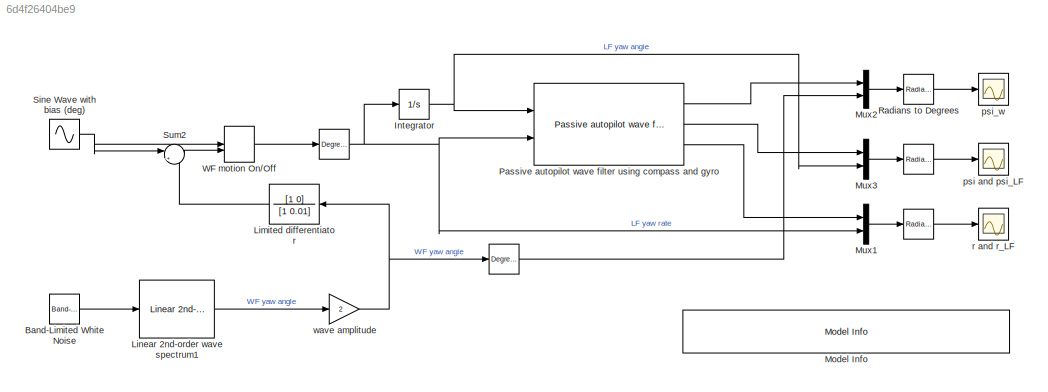
MODEL slx_6d4f26404be9
KIND model
CONFIG AbsTol = auto
CONFIG EnableMultiTasking = on
CONFIG FixedStep = 0.1
CONFIG MaxStep = auto
CONFIG MinStep = auto
CONFIG RelTol = 1e-3
CONFIG SampleTimeConstraint = Unconstrained
CONFIG SolverName = ode4
CONFIG StartTime = 0.0
CONFIG StopTime = 200
BLOCK [Reference]    REF=simulink_extras/Transformations/Radians
to Degrees
  Ports = [1, 1]
  SourceBlock = simulink_extras/Transformations/Radians\nto Degrees
  SourceProductBaseCode = SL
  SourceType = RadiansToDegrees
BLOCK [Reference]     REF=simulink_extras/Transformations/Radians
to Degrees
  Ports = [1, 1]
  SourceBlock = simulink_extras/Transformations/Radians\nto Degrees
  SourceProductBaseCode = SL
  SourceType = RadiansToDegrees
BLOCK [Reference]      REF=simulink_extras/Transformations/Degrees to
Radians
  Ports = [1, 1]
  SourceBlock = simulink_extras/Transformations/Degrees to\nRadians
  SourceProductBaseCode = SL
  SourceType = DegreesToRadians
BLOCK [Reference]           REF=simulink_extras/Transformations/Degrees to
Radians
  NameLocation = top
  Ports = [1, 1]
  SourceBlock = simulink_extras/Transformations/Degrees to\nRadians
  SourceProductBaseCode = SL
  SourceType = DegreesToRadians
BLOCK [Reference] Band-Limited White Noise  REF=simulink/Sources/Band-Limited
White Noise
  Ports = [0, 1]
  SourceBlock = simulink/Sources/Band-Limited\nWhite Noise
  SourceProductBaseCode = SL
  SourceType = Band-Limited White Noise.
BLOCK [Integrator] Integrator
  NameLocation = top
  Ports = [1, 1]
BLOCK [TransferFcn] Limited differentiator
  Denominator = [1 0.01]
  Numerator = [1 0]
BLOCK [Reference] Linear 2nd-order wave spectrum1  REF=mssSimulink/Environment/Waves/Linear 2nd-order 
wave spectrum
  Ports = [1, 1]
  SourceBlock = mssSimulink/Environment/Waves/Linear 2nd-order \nwave spectrum
BLOCK [Reference] Model Info  REF=simulink/Model-Wide
Utilities/Model Info
  Ports = []
  SourceBlock = simulink/Model-Wide\nUtilities/Model Info
  SourceProductBaseCode = SL
  SourceType = CMBlock
BLOCK [Mux] Mux1
  DisplayOption = bar
  Inputs = 2
  Ports = [2, 1]
BLOCK [Mux] Mux2
  DisplayOption = bar
  Inputs = 2
  Ports = [2, 1]
BLOCK [Mux] Mux3
  DisplayOption = bar
  Inputs = 2
  Ports = [2, 1]
BLOCK [Reference] Passive autopilot wave filter using compass and gyro  REF=mssSimulink/Navigation/Estimators/Passive autopilot wave filter 2
  Ports = [2, 3]
  SourceBlock = mssSimulink/Navigation/Estimators/Passive autopilot wave filter 2
  SourceType = wave spectrum damping ratio
BLOCK [Reference] Radians to Degrees    REF=simulink_extras/Transformations/Radians
to Degrees
  NameLocation = top
  Ports = [1, 1]
  SourceBlock = simulink_extras/Transformations/Radians\nto Degrees
  SourceProductBaseCode = SL
  SourceType = RadiansToDegrees
BLOCK [Sin] Sine Wave with bias (deg)
  Amplitude = 0.5
  Frequency = 0.1
  Ports = [0, 1]
  SampleTime = 0
BLOCK [Sum] Sum2
  InputSameDT = on
  Inputs = |++
  OutDataTypeStr = Inherit: Same as first input
  Ports = [2, 1]
  SaturateOnIntegerOverflow = on
BLOCK [ManualSwitch] WF motion On//Off 
  CurrentSetting = 0
  NameLocation = top
BLOCK [Scope] psi and psi_LF
  Floating = off
  NumInputPorts = 1
  Ports = [1]
  ScopeSpecificationString = Simulink.scopes.TimeScopeBlockCfg('CurrentConfiguration', extmgr.ConfigurationSet(extmgr.Configuration('Core','General UI',true),extmgr.Configuration('Core','Source UI',true),extmgr.Configuration('Sources','WiredSimulink',true,'DataLoggingVariableName','ScopeData2','DataLoggingSaveFormat','StructureWithTime','DataLoggingDecimation','10','DataLoggingDecimateData',true,'DataLoggingLimitDataPoints',t...<+1659ch>
BLOCK [Scope] psi_w
  Floating = off
  NumInputPorts = 1
  Ports = [1]
  ScopeSpecificationString = Simulink.scopes.TimeScopeBlockCfg('CurrentConfiguration', extmgr.ConfigurationSet(extmgr.Configuration('Core','General UI',true),extmgr.Configuration('Core','Source UI',true),extmgr.Configuration('Sources','WiredSimulink',true,'DataLoggingSaveFormat','StructureWithTime','DataLoggingDecimation','10','DataLoggingDecimateData',true,'DataLoggingLimitDataPoints',true),extmgr.Configuration('Visuals','Ti...<+1728ch>
BLOCK [Scope] r and r_LF
  Floating = off
  NumInputPorts = 1
  Ports = [1]
  ScopeSpecificationString = Simulink.scopes.TimeScopeBlockCfg('CurrentConfiguration', extmgr.ConfigurationSet(extmgr.Configuration('Core','General UI',true),extmgr.Configuration('Core','Source UI',true),extmgr.Configuration('Sources','WiredSimulink',true,'DataLoggingVariableName','ScopeData3','DataLoggingSaveFormat','StructureWithTime','DataLoggingDecimation','10','DataLoggingDecimateData',true,'DataLoggingLimitDataPoints',t...<+1685ch>
BLOCK [Gain] wave amplitude
  Gain = 2
  NameLocation = top
  OutDataTypeStr = Inherit: Same as input
  ParamDataTypeStr = Inherit: Same as input
  SaturateOnIntegerOverflow = on
NET         :1 -> Integrator:1, Mux1:2, Passive autopilot wave filter using compass and gyro:2
LINE    :1 -> Mux2:2
LINE   :1 -> r and r_LF:1
LINE  :1 -> psi and psi_LF:1
LINE Band-Limited White Noise:1 -> Linear 2nd-order wave spectrum1:1
NET Integrator:1 -> Mux3:2, Passive autopilot wave filter using compass and gyro:1
LINE Limited differentiator:1 -> Sum2:2
LINE Linear 2nd-order wave spectrum1:1 -> wave amplitude:1
LINE Mux1:1 ->   :1
LINE Mux2:1 -> Radians to Degrees  :1
LINE Mux3:1 ->  :1
LINE Passive autopilot wave filter using compass and gyro:1 -> Mux2:1
LINE Passive autopilot wave filter using compass and gyro:2 -> Mux3:1
LINE Passive autopilot wave filter using compass and gyro:3 -> Mux1:1
LINE Radians to Degrees  :1 -> psi_w:1
NET Sine Wave with bias (deg):1 -> Sum2:1, WF motion On//Off :1
LINE Sum2:1 -> WF motion On//Off :2
LINE WF motion On//Off :1 ->         :1
NET wave amplitude:1 ->    :1, Limited differentiator:1
note: NET lines group one-source signal fan-out (src -> all destinations, sorted); 1:1 wires keep LINE
